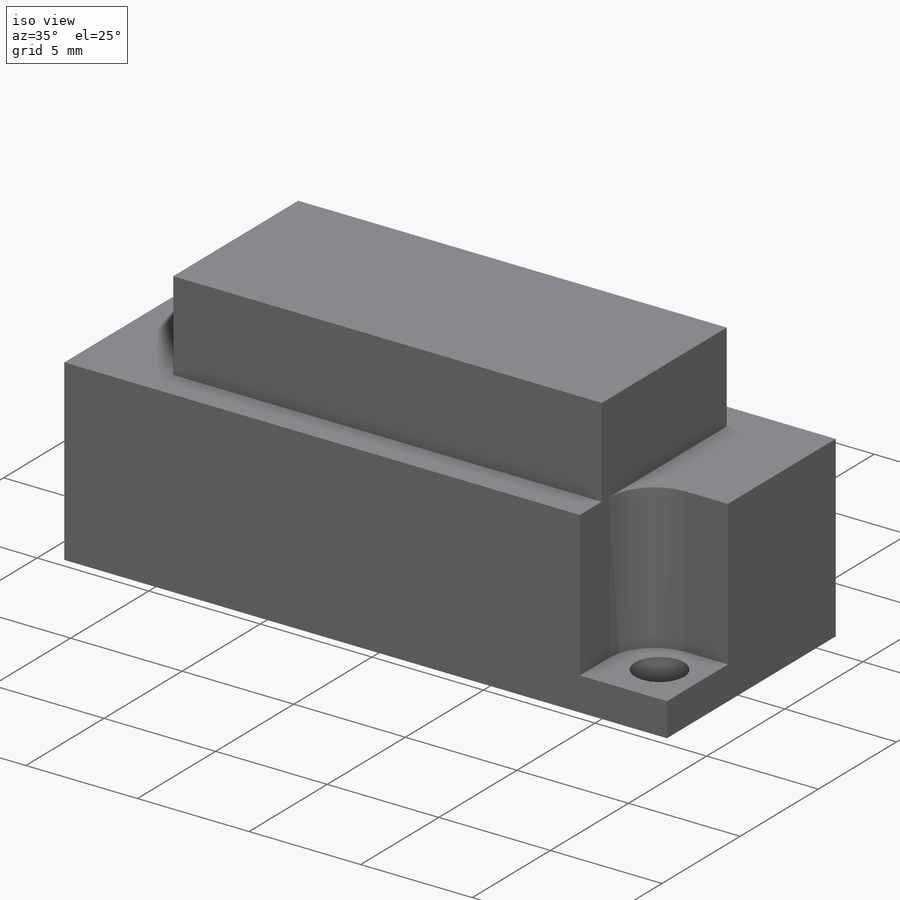
[diagram: iso view]
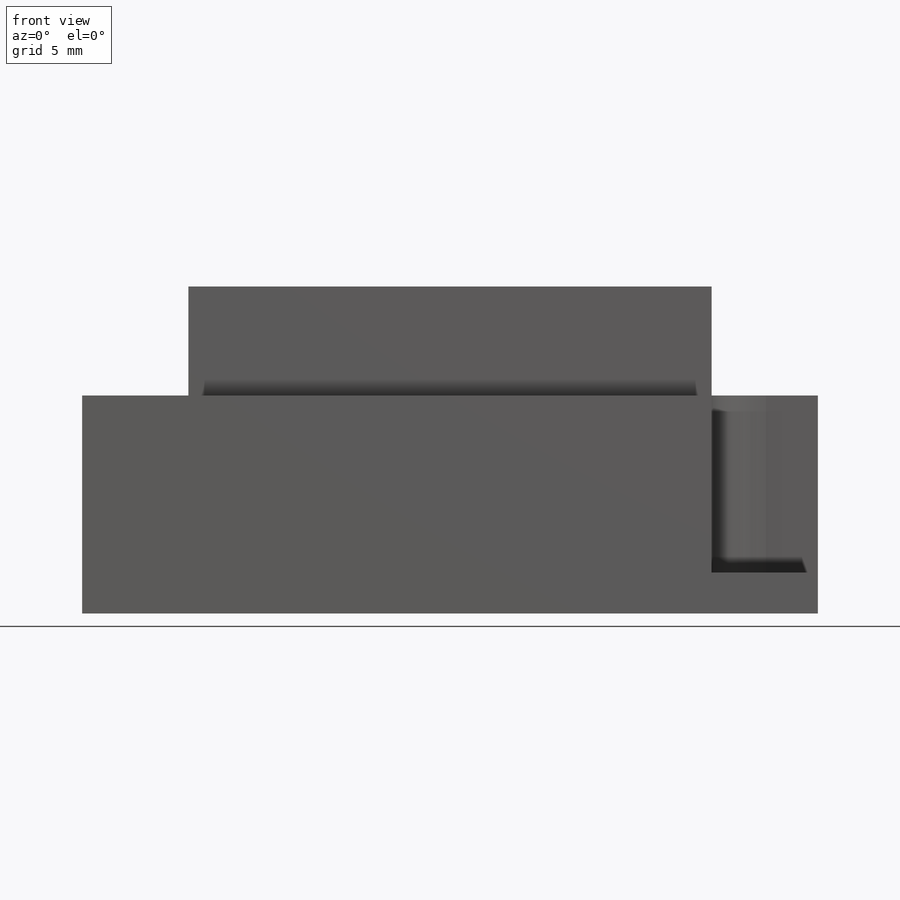
[diagram: front view]
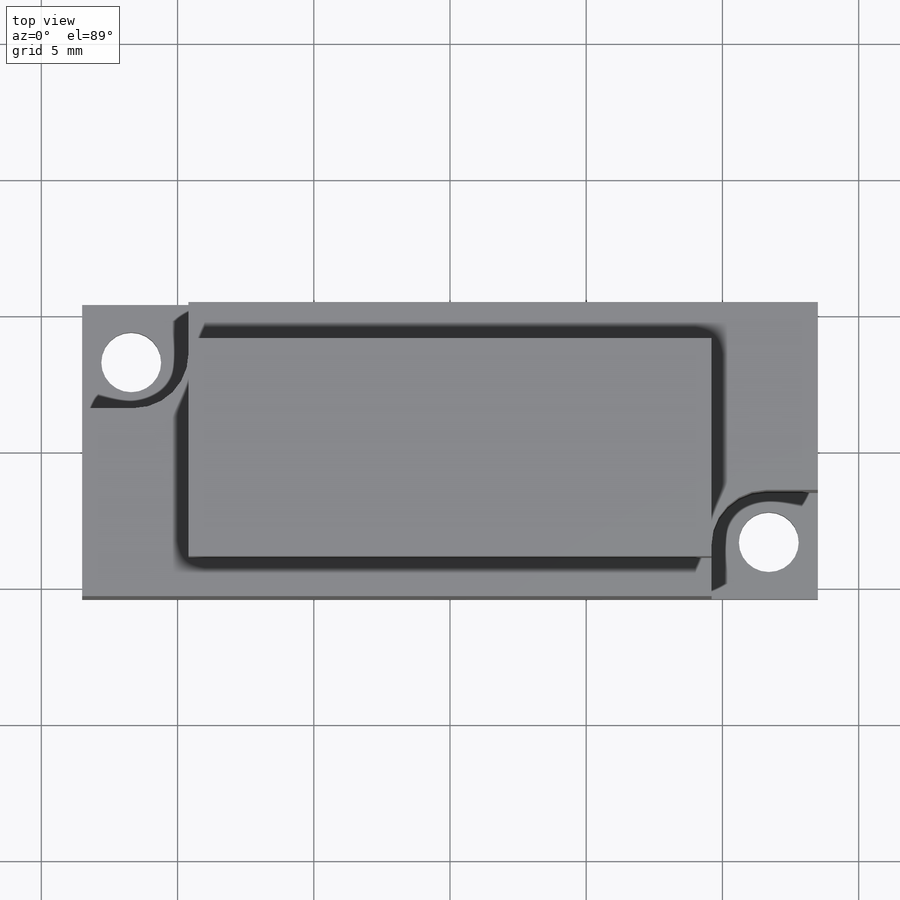
[diagram: top view]
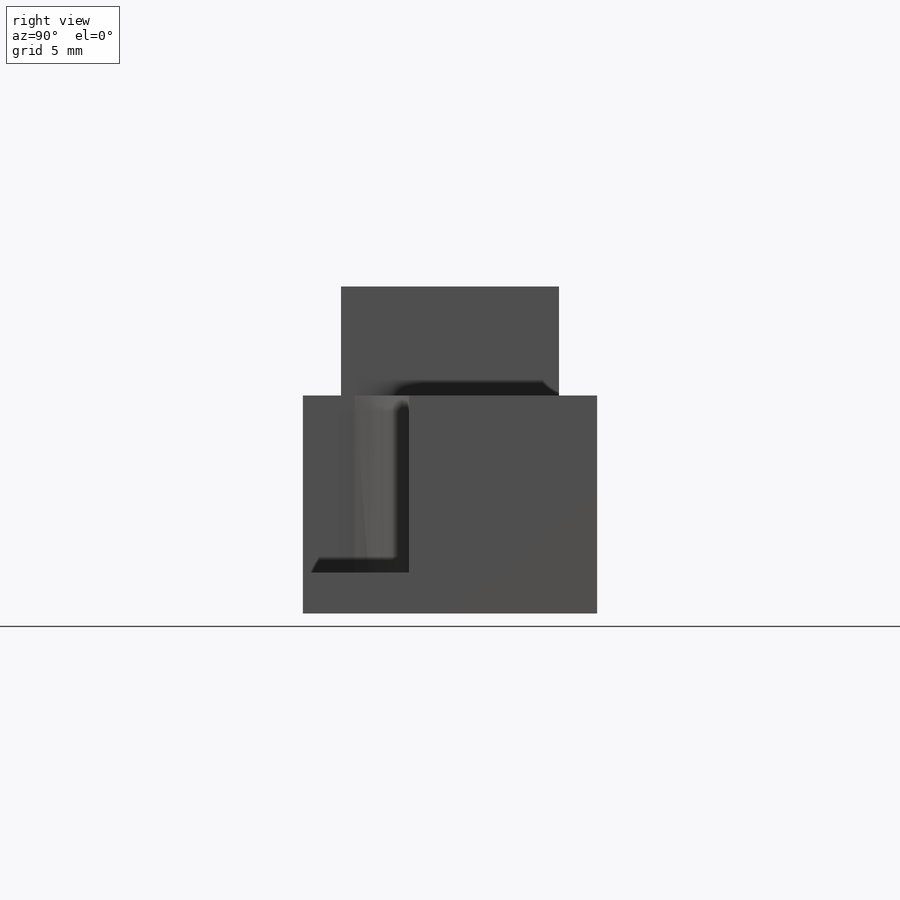
[diagram: right view]
SOLIDWORKS PART (.sldprt)
format: sldprt  version: not decoded by parser v0  size: 204,288 bytes
history: native  units: mm
features: sketch x4, cut_extrude x3, material x1, extrude x1, fillet x1 (+12 scaffold rows collapsed)
feature tree (22):
  scaffold x12  (default folders/planes/origin — collapsed)
  material  "재질 <지정안함>"
  sketch  "스케치1"  dims[c1.D1=27.0mm c1.D2=10.8mm c1.D3=5.4mm c1.D4=~25.589278mm c2.D4=90.0deg c3.D4=13.5mm]
  extrude  "보스-돌출1"  Depth=12mm
  sketch  "스케치2"  dims[D1=3.9mm D2=3.9mm D3=3.9mm D4=3.9mm]
  cut_extrude  "컷-돌출1"  Depth=10.5mm
  fillet  "필렛1"  Radius=2mm
  sketch  "스케치3"  dims[D5=~0.506921mm D1=2.1mm D2=2.1mm D3=1.8mm D4=1.8mm]
  cut_extrude  "컷-돌출2"  Depth=40.5mm
  sketch  "스케치4"  dims[D1=8.0mm D2=4.0mm D3=19.2mm D4=9.6mm]
  cut_extrude  "컷-돌출3"  Depth=4mm
decode coverage: 9 of 9 modeling features carry decoded parameters
note: ~ marks probable driven/reference dimensions
note: suppression state not decoded; provenance and decode notes live in map.json
